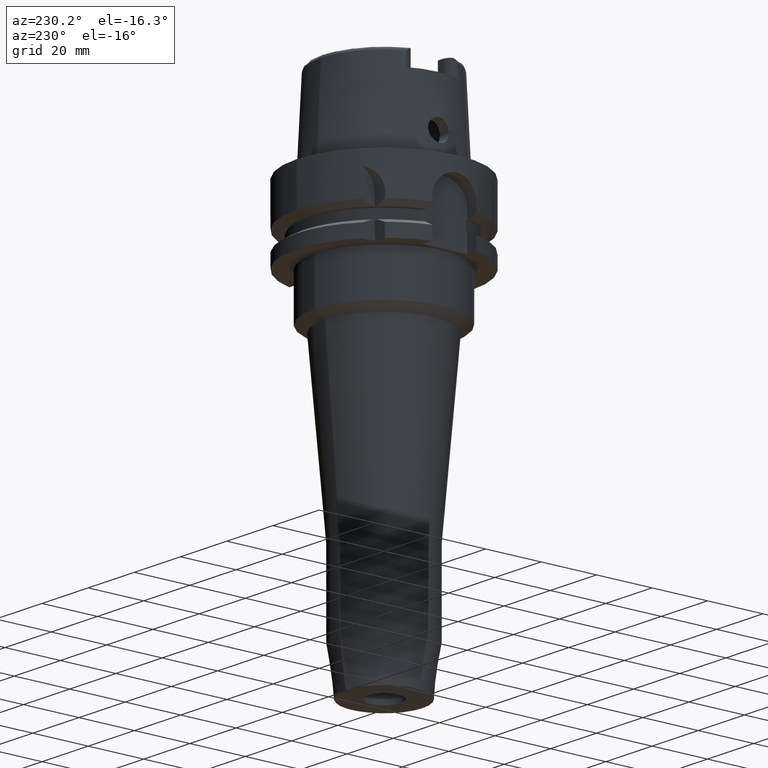
[diagram: clean part render]
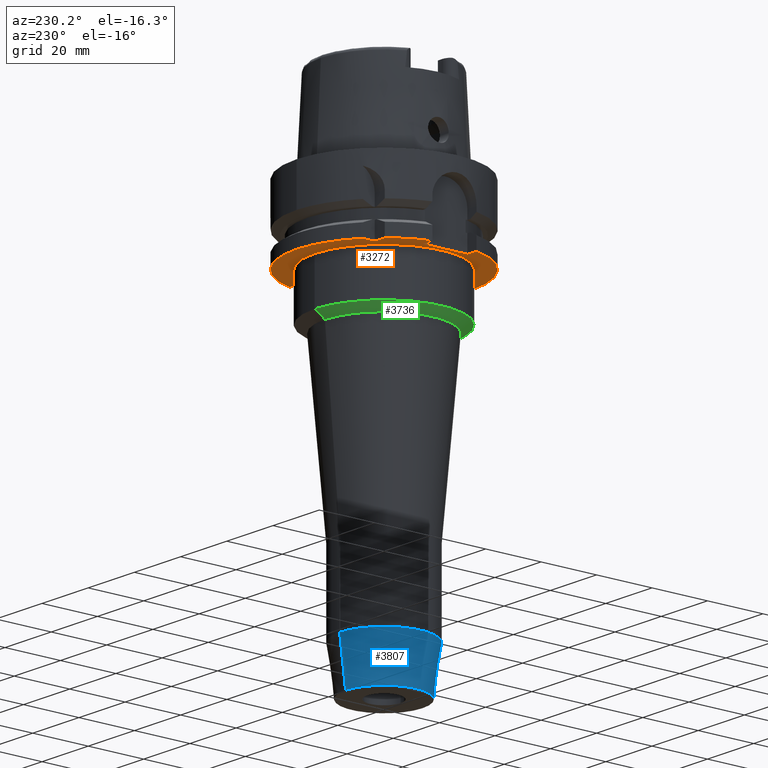
[diagram: same view with three faces highlighted in distinct colors, each labeled with its STEP entity id]
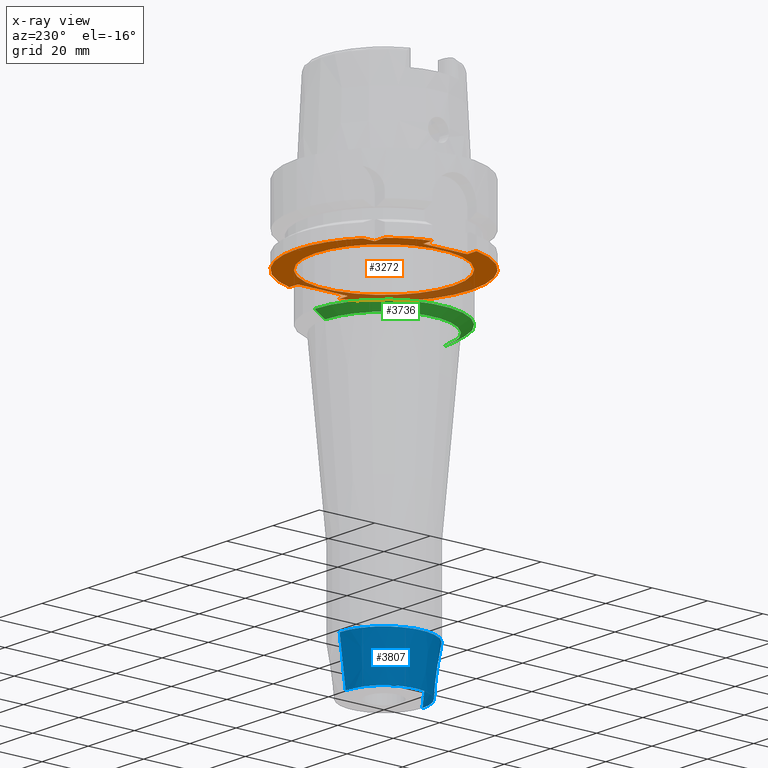
[diagram: x-ray of the same camera — body ghosted, the three highlighted faces saturated]
A machine part, auxiliary view with three faces highlighted in distinct colors.
The next image is the same camera in x-ray (body ghosted, the three faces saturated) — at least one of them is partly hidden behind the body in this view.
Their STEP definitions:

[orange] entity #3272 — the highlighted planar face has unit normal (0, 0, 1).
#929=DIRECTION('',(0.E0,1.E0,0.E0));
#930=VECTOR('',#929,1.6E1);
#931=CARTESIAN_POINT('',(-2.65E1,-8.E0,-2.6E1));
#932=LINE('',#931,#930);
#966=DIRECTION('',(-1.E0,-1.540316790609E-13,0.E0));
#967=VECTOR('',#966,4.336187047278E0);
#968=CARTESIAN_POINT('',(-2.E1,2.E1,-2.6E1));
#969=LINE('',#968,#967);
#973=CARTESIAN_POINT('',(0.E0,0.E0,-2.6E1));
#974=DIRECTION('',(0.E0,0.E0,1.E0));
#975=DIRECTION('',(-7.725773665802E-1,6.349206349206E-1,0.E0));
#976=AXIS2_PLACEMENT_3D('',#973,#974,#975);
#981=DIRECTION('',(-1.E0,-8.686570378871E-14,0.E0));
#982=VECTOR('',#981,3.967195473163E0);
#983=CARTESIAN_POINT('',(-2.65E1,-8.E0,-2.6E1));
#984=LINE('',#983,#982);
#988=CARTESIAN_POINT('',(0.E0,0.E0,-2.6E1));
#989=DIRECTION('',(0.E0,0.E0,1.E0));
#990=DIRECTION('',(-9.672125547036E-1,-2.539682539683E-1,0.E0));
#991=AXIS2_PLACEMENT_3D('',#988,#989,#990);
#996=CARTESIAN_POINT('',(0.E0,0.E0,-2.6E1));
#997=DIRECTION('',(0.E0,0.E0,1.E0));
#998=DIRECTION('',(0.E0,-1.E0,0.E0));
#999=AXIS2_PLACEMENT_3D('',#996,#997,#998);
#1004=DIRECTION('',(0.E0,1.E0,0.E0));
#1005=VECTOR('',#1004,1.8E1);
#1006=CARTESIAN_POINT('',(2.65E1,-9.E0,-2.6E1));
#1007=LINE('',#1006,#1005);
#1011=DIRECTION('',(1.E0,-7.275179563200E-14,0.E0));
#1012=VECTOR('',#1011,3.686917696248E0);
#1013=CARTESIAN_POINT('',(2.65E1,9.E0,-2.6E1));
#1014=LINE('',#1013,#1012);
#1018=CARTESIAN_POINT('',(0.E0,0.E0,-2.6E1));
#1019=DIRECTION('',(0.E0,0.E0,1.E0));
#1020=DIRECTION('',(9.583148474999E-1,2.857142857143E-1,0.E0));
#1021=AXIS2_PLACEMENT_3D('',#1018,#1019,#1020);
#1026=CARTESIAN_POINT('',(0.E0,0.E0,-2.6E1));
#1027=DIRECTION('',(0.E0,0.E0,1.E0));
#1028=DIRECTION('',(0.E0,1.E0,0.E0));
#1029=AXIS2_PLACEMENT_3D('',#1026,#1027,#1028);
#1034=CARTESIAN_POINT('',(0.E0,0.E0,-2.6E1));
#1035=DIRECTION('',(0.E0,0.E0,-1.E0));
#1036=DIRECTION('',(0.E0,-1.E0,0.E0));
#1037=AXIS2_PLACEMENT_3D('',#1034,#1035,#1036);
#1042=CARTESIAN_POINT('',(0.E0,0.E0,-2.6E1));
#1043=DIRECTION('',(0.E0,0.E0,-1.E0));
#1044=DIRECTION('',(0.E0,1.E0,0.E0));
#1045=AXIS2_PLACEMENT_3D('',#1042,#1043,#1044);
#1050=DIRECTION('',(1.556703139446E-13,1.E0,0.E0));
#1051=VECTOR('',#1050,4.336187047278E0);
#1052=CARTESIAN_POINT('',(-2.E1,2.E1,-2.6E1));
#1053=LINE('',#1052,#1051);
#1153=DIRECTION('',(1.E0,6.889739586341E-14,0.E0));
#1154=VECTOR('',#1153,3.686917696248E0);
#1155=CARTESIAN_POINT('',(2.65E1,-9.E0,-2.6E1));
#1156=LINE('',#1155,#1154);
#1539=DIRECTION('',(-1.E0,8.776122650818E-14,0.E0));
#1540=VECTOR('',#1539,3.967195473163E0);
#1541=CARTESIAN_POINT('',(-2.65E1,8.E0,-2.6E1));
#1542=LINE('',#1541,#1540);
#2480=CARTESIAN_POINT('',(0.E0,2.5E1,-2.6E1));
#2481=VERTEX_POINT('',#2480);
#2482=CARTESIAN_POINT('',(0.E0,-2.5E1,-2.6E1));
#2483=VERTEX_POINT('',#2482);
#2484=CARTESIAN_POINT('',(-2.E1,2.E1,-2.6E1));
#2485=CARTESIAN_POINT('',(-2.E1,2.433618704728E1,-2.6E1));
#2486=VERTEX_POINT('',#2484);
#2487=VERTEX_POINT('',#2485);
#2488=CARTESIAN_POINT('',(-2.433618704728E1,2.E1,-2.6E1));
#2489=VERTEX_POINT('',#2488);
#2490=CARTESIAN_POINT('',(-3.046719547316E1,8.E0,-2.6E1));
#2491=VERTEX_POINT('',#2490);
#2492=CARTESIAN_POINT('',(-2.65E1,8.E0,-2.6E1));
#2493=VERTEX_POINT('',#2492);
#2494=CARTESIAN_POINT('',(-2.65E1,-8.E0,-2.6E1));
#2495=VERTEX_POINT('',#2494);
#2496=CARTESIAN_POINT('',(-3.046719547316E1,-8.E0,-2.6E1));
#2497=VERTEX_POINT('',#2496);
#2498=CARTESIAN_POINT('',(-1.294568961206E-14,-3.15E1,-2.6E1));
#2499=CARTESIAN_POINT('',(3.018691769625E1,-9.E0,-2.6E1));
#2500=VERTEX_POINT('',#2498);
#2501=VERTEX_POINT('',#2499);
#2502=CARTESIAN_POINT('',(2.65E1,-9.E0,-2.6E1));
#2503=VERTEX_POINT('',#2502);
#2504=CARTESIAN_POINT('',(2.65E1,9.E0,-2.6E1));
#2505=VERTEX_POINT('',#2504);
#2506=CARTESIAN_POINT('',(3.018691769625E1,9.E0,-2.6E1));
#2507=VERTEX_POINT('',#2506);
#2508=CARTESIAN_POINT('',(1.065814103640E-14,3.15E1,-2.6E1));
#2509=VERTEX_POINT('',#2508);
#3234=CARTESIAN_POINT('',(0.E0,0.E0,-2.6E1));
#3235=DIRECTION('',(0.E0,0.E0,1.E0));
#3236=DIRECTION('',(0.E0,1.E0,0.E0));
#3237=AXIS2_PLACEMENT_3D('',#3234,#3235,#3236);
#3238=PLANE('',#3237);
#3240=ORIENTED_EDGE('',*,*,#3239,.F.);
#3242=ORIENTED_EDGE('',*,*,#3241,.T.);
#3244=ORIENTED_EDGE('',*,*,#3243,.T.);
#3246=ORIENTED_EDGE('',*,*,#3245,.F.);
#3247=ORIENTED_EDGE('',*,*,#3211,.F.);
#3249=ORIENTED_EDGE('',*,*,#3248,.T.);
#3251=ORIENTED_EDGE('',*,*,#3250,.T.);
#3253=ORIENTED_EDGE('',*,*,#3252,.T.);
#3255=ORIENTED_EDGE('',*,*,#3254,.F.);
#3257=ORIENTED_EDGE('',*,*,#3256,.T.);
#3259=ORIENTED_EDGE('',*,*,#3258,.T.);
#3261=ORIENTED_EDGE('',*,*,#3260,.T.);
#3263=ORIENTED_EDGE('',*,*,#3262,.T.);
#3264=EDGE_LOOP('',(#3240,#3242,#3244,#3246,#3247,#3249,#3251,#3253,#3255,#3257,
#3259,#3261,#3263));
#3265=FACE_OUTER_BOUND('',#3264,.F.);
#3267=ORIENTED_EDGE('',*,*,#3266,.T.);
#3269=ORIENTED_EDGE('',*,*,#3268,.T.);
#3270=EDGE_LOOP('',(#3267,#3269));
#3271=FACE_BOUND('',#3270,.F.);
#977=CIRCLE('',#976,3.15E1);
#992=CIRCLE('',#991,3.15E1);
#1000=CIRCLE('',#999,3.15E1);
#1022=CIRCLE('',#1021,3.15E1);
#1030=CIRCLE('',#1029,3.15E1);
#1038=CIRCLE('',#1037,2.5E1);
#1046=CIRCLE('',#1045,2.5E1);
#3211=EDGE_CURVE('',#2495,#2493,#932,.T.);
#3239=EDGE_CURVE('',#2486,#2487,#1053,.T.);
#3241=EDGE_CURVE('',#2486,#2489,#969,.T.);
#3243=EDGE_CURVE('',#2489,#2491,#977,.T.);
#3245=EDGE_CURVE('',#2493,#2491,#1542,.T.);
#3248=EDGE_CURVE('',#2495,#2497,#984,.T.);
#3250=EDGE_CURVE('',#2497,#2500,#992,.T.);
#3252=EDGE_CURVE('',#2500,#2501,#1000,.T.);
#3254=EDGE_CURVE('',#2503,#2501,#1156,.T.);
#3256=EDGE_CURVE('',#2503,#2505,#1007,.T.);
#3258=EDGE_CURVE('',#2505,#2507,#1014,.T.);
#3260=EDGE_CURVE('',#2507,#2509,#1022,.T.);
#3262=EDGE_CURVE('',#2509,#2487,#1030,.T.);
#3266=EDGE_CURVE('',#2483,#2481,#1038,.T.);
#3268=EDGE_CURVE('',#2481,#2483,#1046,.T.);
#3272=ADVANCED_FACE('',(#3265,#3271),#3238,.F.);

[blue] entity #3807 — the highlighted conical surface has half-angle 7.5 deg.
#1713=CARTESIAN_POINT('',(0.E0,0.E0,-1.336349477641E2));
#1714=DIRECTION('',(0.E0,0.E0,1.E0));
#1715=DIRECTION('',(0.E0,1.E0,0.E0));
#1716=AXIS2_PLACEMENT_3D('',#1713,#1714,#1715);
#1721=DIRECTION('',(0.E0,1.305261922199E-1,-9.914448613738E-1));
#1722=VECTOR('',#1721,1.650626562654E1);
#1723=CARTESIAN_POINT('',(0.E0,-1.6E1,-1.336349477641E2));
#1724=LINE('',#1723,#1722);
#1728=DIRECTION('',(0.E0,-1.305261922199E-1,-9.914448613738E-1));
#1729=VECTOR('',#1728,1.650626562654E1);
#1730=CARTESIAN_POINT('',(0.E0,1.6E1,-1.336349477641E2));
#1731=LINE('',#1730,#1729);
#1751=CARTESIAN_POINT('',(0.E0,0.E0,-1.5E2));
#1752=DIRECTION('',(0.E0,0.E0,1.E0));
#1753=DIRECTION('',(0.E0,1.E0,0.E0));
#1754=AXIS2_PLACEMENT_3D('',#1751,#1752,#1753);
#2460=CARTESIAN_POINT('',(0.E0,-1.38455E1,-1.5E2));
#2461=CARTESIAN_POINT('',(0.E0,1.38455E1,-1.5E2));
#2462=VERTEX_POINT('',#2460);
#2463=VERTEX_POINT('',#2461);
#2464=CARTESIAN_POINT('',(0.E0,1.6E1,-1.336349477641E2));
#2465=VERTEX_POINT('',#2464);
#2466=CARTESIAN_POINT('',(0.E0,-1.6E1,-1.336349477641E2));
#2467=VERTEX_POINT('',#2466);
#3793=CARTESIAN_POINT('',(0.E0,0.E0,-1.418174738821E2));
#3794=DIRECTION('',(0.E0,0.E0,1.E0));
#3795=DIRECTION('',(0.E0,1.E0,0.E0));
#3796=AXIS2_PLACEMENT_3D('',#3793,#3794,#3795);
#3797=CONICAL_SURFACE('',#3796,1.492275000001E1,7.5E0);
#3799=ORIENTED_EDGE('',*,*,#3798,.F.);
#3800=ORIENTED_EDGE('',*,*,#3788,.T.);
#3802=ORIENTED_EDGE('',*,*,#3801,.T.);
#3804=ORIENTED_EDGE('',*,*,#3803,.F.);
#3805=EDGE_LOOP('',(#3799,#3800,#3802,#3804));
#3806=FACE_OUTER_BOUND('',#3805,.F.);
#1717=CIRCLE('',#1716,1.600000000001E1);
#1755=CIRCLE('',#1754,1.38455E1);
#3788=EDGE_CURVE('',#2465,#2467,#1717,.T.);
#3798=EDGE_CURVE('',#2465,#2463,#1731,.T.);
#3801=EDGE_CURVE('',#2467,#2462,#1724,.T.);
#3803=EDGE_CURVE('',#2463,#2462,#1755,.T.);
#3807=ADVANCED_FACE('',(#3806),#3797,.T.);

[green] entity #3736 — the highlighted conical surface has half-angle 57.513 deg.
#1623=DIRECTION('',(0.E0,-8.435133335169E-1,-5.371082350692E-1));
#1624=VECTOR('',#1623,4.379135281896E0);
#1625=CARTESIAN_POINT('',(0.E0,2.5E1,-4.2E1));
#1626=LINE('',#1625,#1624);
#1638=CARTESIAN_POINT('',(0.E0,0.E0,-4.2E1));
#1639=DIRECTION('',(0.E0,0.E0,1.E0));
#1640=DIRECTION('',(0.E0,1.E0,0.E0));
#1641=AXIS2_PLACEMENT_3D('',#1638,#1639,#1640);
#1646=DIRECTION('',(0.E0,8.435133335169E-1,-5.371082350692E-1));
#1647=VECTOR('',#1646,4.379135281896E0);
#1648=CARTESIAN_POINT('',(0.E0,-2.5E1,-4.2E1));
#1649=LINE('',#1648,#1647);
#1653=CARTESIAN_POINT('',(0.E0,0.E0,-4.435206962238E1));
#1654=DIRECTION('',(0.E0,0.E0,-1.E0));
#1655=DIRECTION('',(0.E0,-1.E0,0.E0));
#1656=AXIS2_PLACEMENT_3D('',#1653,#1654,#1655);
#2472=CARTESIAN_POINT('',(0.E0,2.130614100044E1,-4.435206962239E1));
#2473=VERTEX_POINT('',#2472);
#2474=CARTESIAN_POINT('',(0.E0,-2.130614100044E1,-4.435206962239E1));
#2475=VERTEX_POINT('',#2474);
#2476=CARTESIAN_POINT('',(0.E0,2.5E1,-4.2E1));
#2477=VERTEX_POINT('',#2476);
#2478=CARTESIAN_POINT('',(0.E0,-2.5E1,-4.2E1));
#2479=VERTEX_POINT('',#2478);
#3724=CARTESIAN_POINT('',(0.E0,0.E0,-4.317603481119E1));
#3725=DIRECTION('',(0.E0,0.E0,1.E0));
#3726=DIRECTION('',(0.E0,1.E0,0.E0));
#3727=AXIS2_PLACEMENT_3D('',#3724,#3725,#3726);
#3728=CONICAL_SURFACE('',#3727,2.315307050022E1,5.7513E1);
#3729=ORIENTED_EDGE('',*,*,#3714,.F.);
#3730=ORIENTED_EDGE('',*,*,#3691,.T.);
#3731=ORIENTED_EDGE('',*,*,#3718,.T.);
#3733=ORIENTED_EDGE('',*,*,#3732,.T.);
#3734=EDGE_LOOP('',(#3729,#3730,#3731,#3733));
#3735=FACE_OUTER_BOUND('',#3734,.F.);
#1642=CIRCLE('',#1641,2.5E1);
#1657=CIRCLE('',#1656,2.130614100045E1);
#3691=EDGE_CURVE('',#2477,#2479,#1642,.T.);
#3714=EDGE_CURVE('',#2477,#2473,#1626,.T.);
#3718=EDGE_CURVE('',#2479,#2475,#1649,.T.);
#3732=EDGE_CURVE('',#2475,#2473,#1657,.T.);
#3736=ADVANCED_FACE('',(#3735),#3728,.T.);